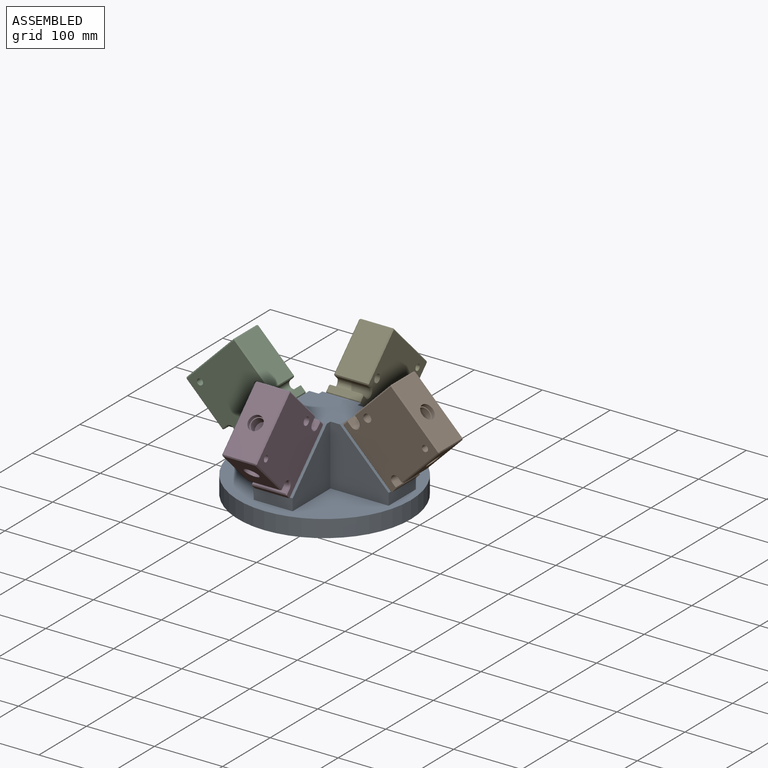
[diagram: assembled view]
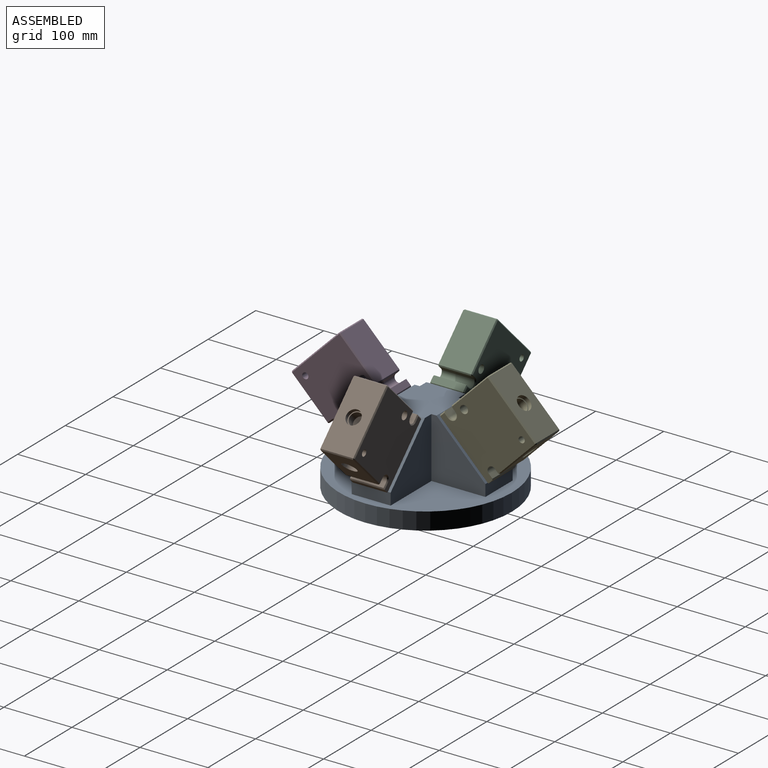
[diagram: assembled view, second angle]
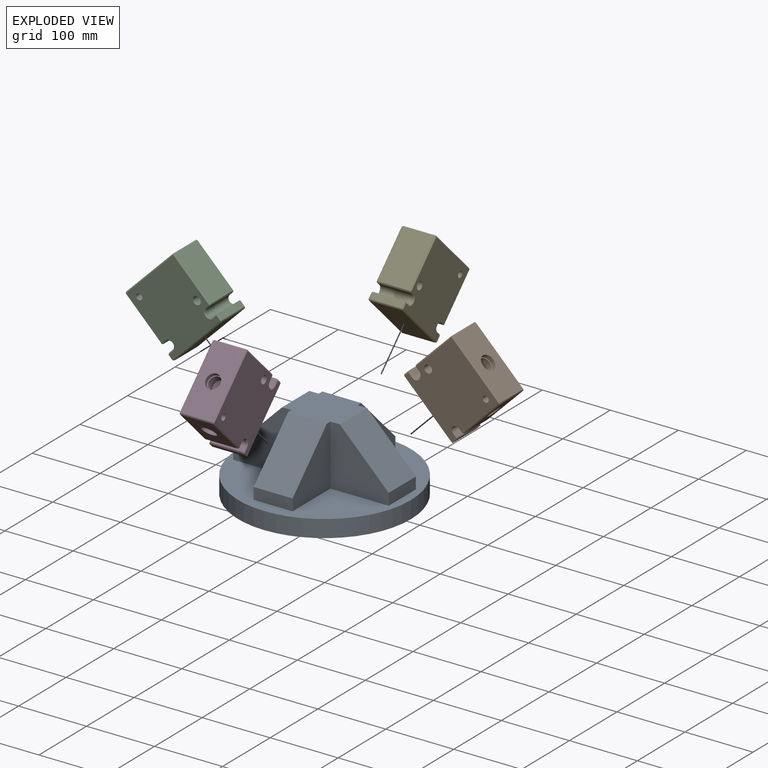
[diagram: exploded view]
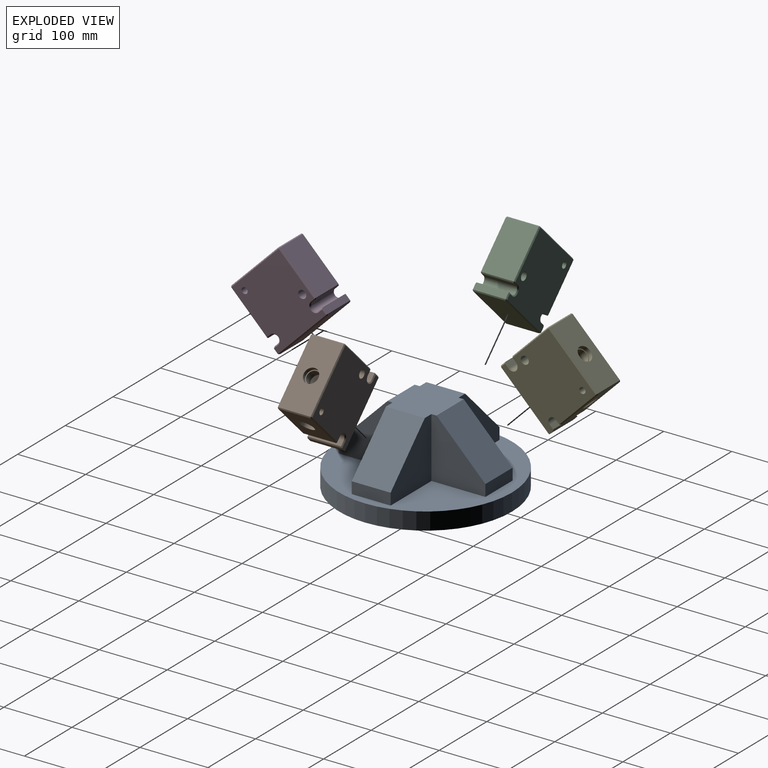
[diagram: exploded view, second angle]
ASSEMBLY  parts=5 mates=4
PART A: 20 faces, bbox 254x254x114.3 mm
  f0: plane 254x254mm, normal (0,0,1), area 28533.7mm2, adj f1,f2,f3,f7,f8,f10,f11,f13
  f1: plane 88.9x79.38mm, normal (1,0,0), area 4475.8mm2, adj f0,f5,f8,f9,f18
  f2: plane 88.9x79.38mm, normal (-1,0,0), area 4475.8mm2, adj f0,f5,f8,f9,f13
  f3: cylinder r=127mm len=254mm, axis (0,0,-1), area 20268.3mm2, adj f0,f4
  f4: plane 254x254mm, normal (0,0,-1), area 50670.7mm2, adj f3
  f5: plane 84.92x72.22mm, normal (0,0,1), area 5714mm2, adj f1,f2,f6,f9,f10,f11,f12,f13
  f6: plane 71.84x71.84mm, normal (0,-0.71,0.71), area 5806.4mm2, adj f5,f7,f10,f11
  f7: plane 57.15x17.06mm, normal (0,-1,0), area 974.9mm2, adj f0,f6,f10,f11
  f8: plane 57.15x17.06mm, normal (0,1,0), area 974.9mm2, adj f0,f1,f2,f9
  f9: plane 71.84x71.84mm, normal (0,0.71,0.71), area 5806.4mm2, adj f1,f2,f5,f8
  f10: plane 88.9x79.38mm, normal (1,0,0), area 4475.8mm2, adj f0,f5,f6,f7,f19
  f11: plane 88.9x79.38mm, normal (-1,0,0), area 4475.8mm2, adj f0,f5,f6,f7,f14
  f12: plane 71.84x71.84mm, normal (-0.71,0,0.71), area 5806.4mm2, adj f5,f13,f14,f15
  f13: plane 88.9x85.73mm, normal (0,1,0), area 5040.3mm2, adj f0,f2,f5,f12,f15
  f14: plane 88.9x85.73mm, normal (0,-1,0), area 5040.3mm2, adj f0,f5,f11,f12,f15
  f15: plane 57.15x17.06mm, normal (-1,0,0), area 974.9mm2, adj f0,f12,f13,f14
  f16: plane 57.15x17.06mm, normal (1,0,0), area 974.9mm2, adj f0,f17,f18,f19
  f17: plane 71.84x71.84mm, normal (0.71,0,0.71), area 5806.4mm2, adj f5,f16,f18,f19
  f18: plane 88.9x85.73mm, normal (0,1,0), area 5040.3mm2, adj f0,f1,f5,f16,f17
  f19: plane 88.9x85.73mm, normal (0,-1,0), area 5040.3mm2, adj f0,f5,f10,f16,f17
PART B: 58 faces, bbox 50.8x101.6x101.6 mm
  f0: plane 74.42x47.75mm, normal (0,1,0), area 3553.8mm2, adj f43,f44,f50,f51
  f1: plane 74.42x47.75mm, normal (0,-1,0), area 3187.7mm2, adj f17,f26,f34,f35,f55
  f2: plane 100.08x98.55mm, normal (-1,0,0), area 9181.2mm2, adj f7,f11,f12,f13,f22,f35,f36,f45
  f3: plane 100.08x98.55mm, normal (1,0,0), area 9123.6mm2, adj f7,f23,f24,f25,f26,f27,f28,f32
  f4: plane 98.55x47.75mm, normal (0,0,1), area 4340mm2, adj f21,f33,f34,f44,f45
  f5: plane 98.55x47.75mm, normal (0,0,-1), area 4706.1mm2, adj f27,f30,f36,f37
  f6: plane 47.75x9.91mm, normal (0,1,0), area 473mm2, adj f8,f28,f37,f46
  f7: plane 50.8x8.38mm, normal (0,-1,0), area 425.8mm2, adj f2,f3,f22,f30
  f8: plane 47.75x8.89mm, normal (0,0,1), area 424.5mm2, adj f6,f10,f32,f49
  f9: plane 47.75x7.37mm, normal (0,0,-1), area 351.7mm2, adj f10,f42,f50,f54
  f10: cylinder r=6.35mm len=47.75mm, axis (1,0,0), area 952.6mm2, adj f8,f9,f38,f52
  f11: plane 49.28x7.37mm, normal (0,0,1), area 363mm2, adj f2,f13,f22,f23
  f12: plane 49.28x7.37mm, normal (0,0,-1), area 363mm2, adj f2,f13,f25,f55
  f13: cylinder r=6.35mm len=49.28mm, axis (1,0,0), area 983mm2, adj f2,f11,f12,f24
  f14: cone r=0mm half-angle=59deg, axis (0,-1,0), area 332.5mm2, adj f15
  f15: cylinder r=9.53mm len=19.05mm, axis (0,-1,0), area 760.1mm2, adj f14,f16
  f16: plane 21.59x21.59mm, normal (0,-1,0), area 81.1mm2, adj f15,f17
  f17: cylinder r=10.79mm len=21.59mm, axis (0,-1,0), area 430.7mm2, adj f1,f16
  f18: cone r=0mm half-angle=59deg, axis (0,0,1), area 332.5mm2, adj f19
  f19: cylinder r=9.53mm len=19.05mm, axis (0,0,1), area 760.1mm2, adj f18,f20
  f20: plane 21.59x21.59mm, normal (0,0,1), area 81.1mm2, adj f19,f21
  f21: cylinder r=10.79mm len=21.59mm, axis (0,0,1), area 430.7mm2, adj f4,f20
  f22: plane 50.8x1.52mm, normal (0,-0.71,0.71), area 107.8mm2, adj f2,f7,f11,f23
  f23: plane 8.89x1.52mm, normal (0.71,0,0.71), area 17.5mm2, adj f3,f11,f22,f24
  f24: cone r=6.35mm half-angle=45deg, axis (1,0,0), area 48.2mm2, adj f3,f13,f23,f25
  f25: plane 8.13x1.52mm, normal (0.71,0,-0.71), area 16.7mm2, adj f3,f12,f24,f26,f55
  f26: plane 75.18x1.52mm, normal (0.71,-0.71,0), area 161.2mm2, adj f1,f3,f25,f29,f55
  f27: plane 100.08x1.52mm, normal (0.71,0,-0.71), area 214mm2, adj f3,f5,f30,f31
  f28: plane 9.91x1.52mm, normal (0.71,0.71,0), area 19.7mm2, adj f3,f6,f31,f32
  f29: plane 1.52x1.52mm, normal (0.58,-0.58,0.58), area 2mm2, adj f26,f33,f34
  f30: plane 50.8x1.52mm, normal (0,-0.71,-0.71), area 106.2mm2, adj f5,f7,f27,f36
  f31: plane 1.52x1.52mm, normal (0.58,0.58,-0.58), area 2mm2, adj f27,f28,f37
  f32: plane 8.89x1.52mm, normal (0.71,0,0.71), area 17.5mm2, adj f3,f8,f28,f38
  f33: plane 98.55x1.52mm, normal (0.71,0,0.71), area 212.4mm2, adj f3,f4,f29,f39
  f34: plane 47.75x1.52mm, normal (0,-0.71,0.71), area 102.9mm2, adj f1,f4,f29,f40
  f35: plane 75.95x1.52mm, normal (-0.71,-0.71,0), area 162mm2, adj f1,f2,f40,f55
  f36: plane 100.08x1.52mm, normal (-0.71,0,-0.71), area 214mm2, adj f2,f5,f30,f41
  f37: plane 47.75x1.52mm, normal (0,0.71,-0.71), area 102.9mm2, adj f5,f6,f31,f41
  f38: cone r=6.35mm half-angle=45deg, axis (1,0,0), area 48.2mm2, adj f3,f10,f32,f42
  f39: plane 1.52x1.52mm, normal (0.58,0.58,0.58), area 2mm2, adj f33,f43,f44
  f40: plane 1.52x1.52mm, normal (-0.58,-0.58,0.58), area 2mm2, adj f34,f35,f45
  f41: plane 1.52x1.52mm, normal (-0.58,0.58,-0.58), area 2mm2, adj f36,f37,f46
  f42: plane 7.37x1.52mm, normal (0.71,0,-0.71), area 15.9mm2, adj f3,f9,f38,f47
  f43: plane 74.42x1.52mm, normal (0.71,0.71,0), area 160.4mm2, adj f0,f3,f39,f47
  f44: plane 47.75x1.52mm, normal (0,0.71,0.71), area 102.9mm2, adj f0,f4,f39,f48
  f45: plane 98.55x1.52mm, normal (-0.71,0,0.71), area 212.4mm2, adj f2,f4,f40,f48
  f46: plane 9.91x1.52mm, normal (-0.71,0.71,0), area 19.7mm2, adj f2,f6,f41,f49
  f47: plane 1.52x1.52mm, normal (0.58,0.58,-0.58), area 2mm2, adj f42,f43,f50
  f48: plane 1.52x1.52mm, normal (-0.58,0.58,0.58), area 2mm2, adj f44,f45,f51
  f49: plane 8.89x1.52mm, normal (-0.71,0,0.71), area 17.5mm2, adj f2,f8,f46,f52
  f50: plane 47.75x1.52mm, normal (0,0.71,-0.71), area 102.9mm2, adj f0,f9,f47,f53
  f51: plane 74.42x1.52mm, normal (-0.71,0.71,0), area 160.4mm2, adj f0,f2,f48,f53
  f52: cone r=7.87mm half-angle=45deg, axis (-1,0,0), area 48.2mm2, adj f2,f10,f49,f54
  f53: plane 1.52x1.52mm, normal (-0.58,0.58,-0.58), area 2mm2, adj f50,f51,f54
  f54: plane 7.37x1.52mm, normal (-0.71,0,-0.71), area 15.9mm2, adj f2,f9,f52,f53
  f55: plane 50.04x1.52mm, normal (0,-0.71,-0.71), area 105.4mm2, adj f1,f12,f25,f26,f35
  f56: cylinder r=5.94mm len=50.8mm, axis (1,0,0), area 1894.7mm2, adj f2,f3
  f57: cylinder r=4.52mm len=50.8mm, axis (1,0,0), area 1443mm2, adj f2,f3
PART C: same geometry as B
PART D: same geometry as B
PART E: same geometry as B
PLACE A t=(0,0,-114.3)mm
PLACE B rot(axis=(0.36,0.36,0.86),98.4deg) t=(115.38,-25.4,-72.92)mm
PLACE C rot(axis=(0.36,-0.36,-0.86),98.4deg) t=(-115.38,25.4,-72.92)mm
PLACE D rot(axis=(1,0,0),45deg) t=(-25.4,-109.03,-72.92)mm
PLACE E rot(axis=(0,-0.38,-0.92),180deg) t=(25.4,109.03,-72.92)mm
MATE fastened B.f5 <-> A.f17  axis (-0.71,0,-0.71) through (114.3,-23.88,-71.84)mm
MATE fastened C.f5 <-> A.f12  axis (0.71,0,-0.71) through (-114.3,23.88,-71.84)mm
MATE fastened E.f5 <-> A.f9  axis (0,-0.71,-0.71) through (23.88,107.95,-71.84)mm
MATE fastened D.f5 <-> A.f6  axis (0,0.71,-0.71) through (-23.88,-107.95,-71.84)mm
